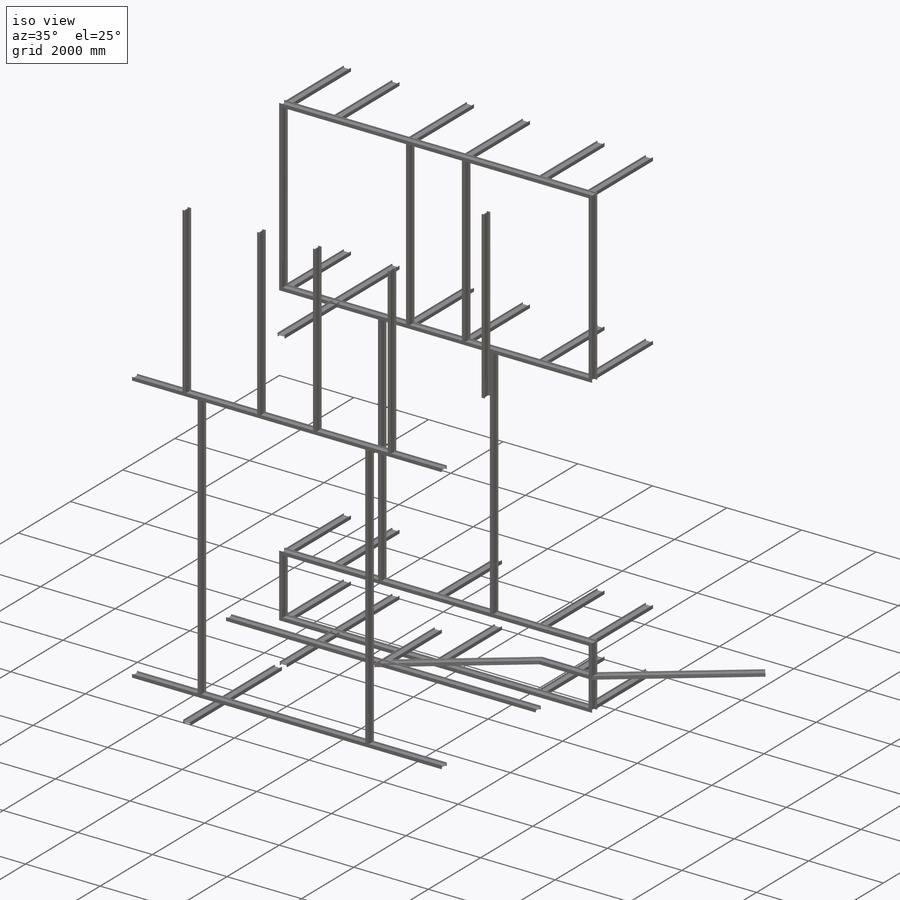
[diagram: iso view]
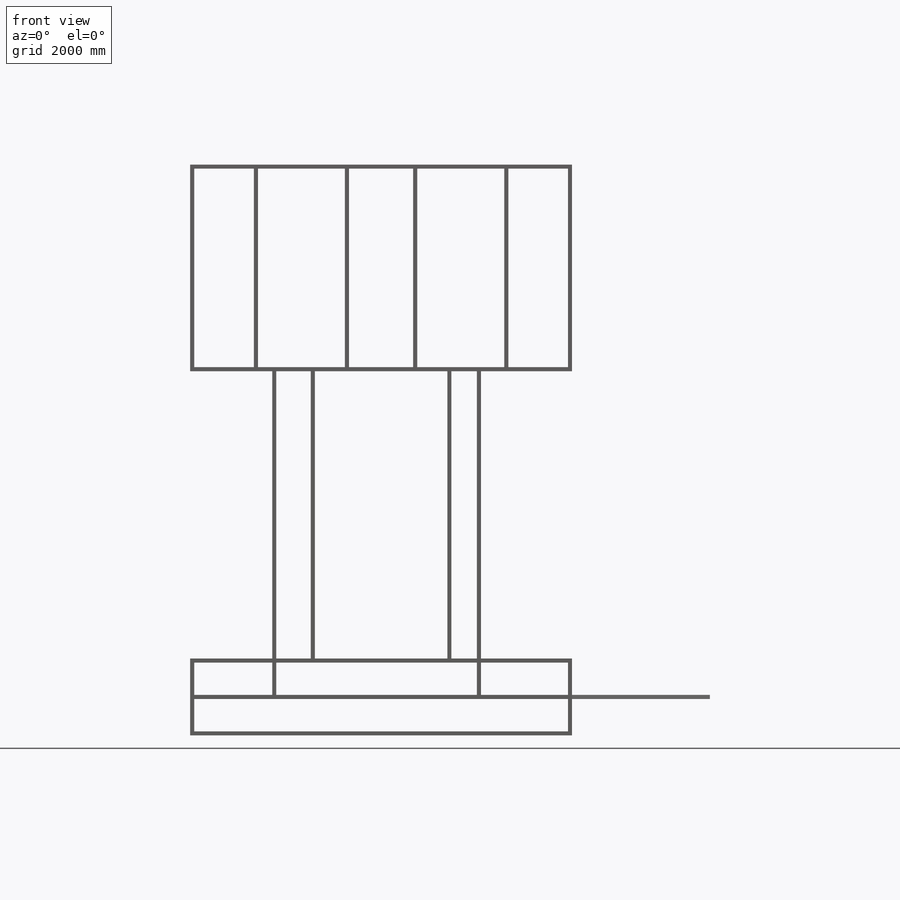
[diagram: front view]
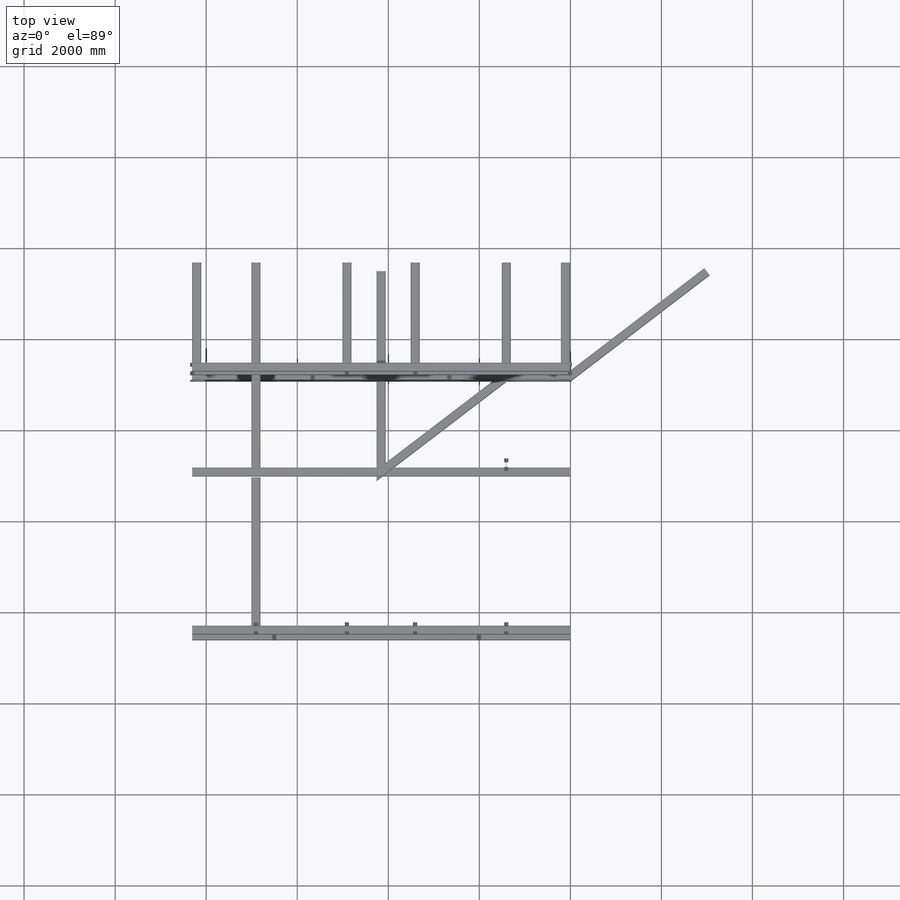
[diagram: top view]
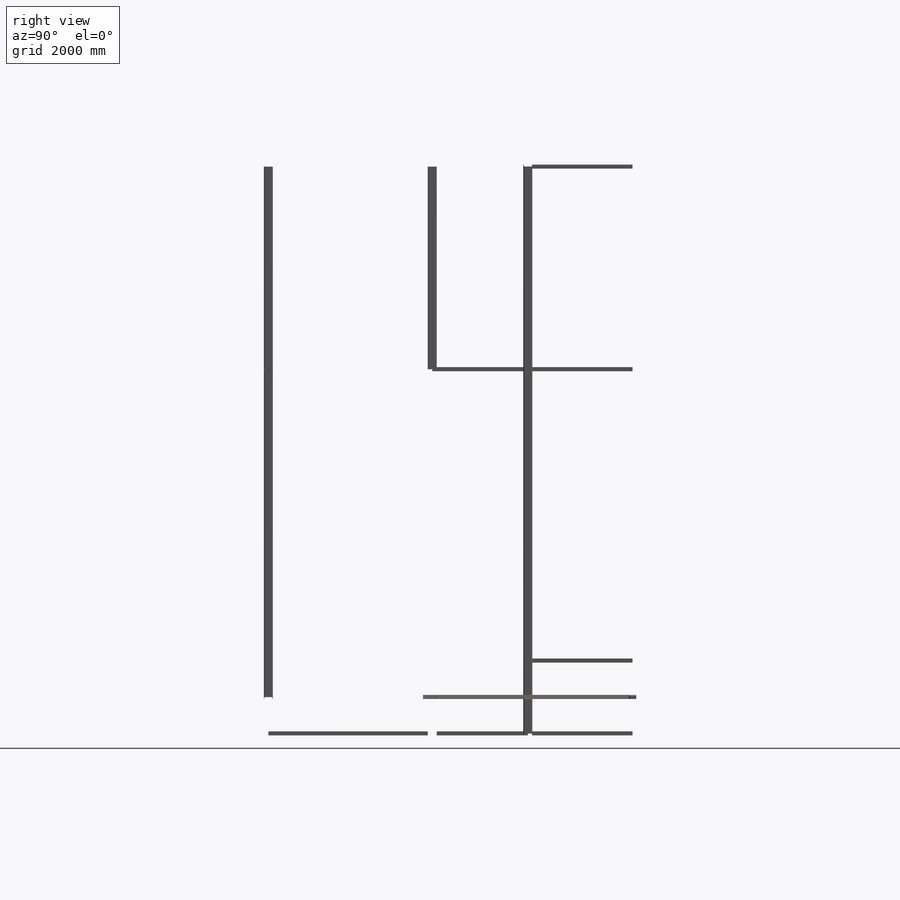
[diagram: right view]
SOLIDWORKS PART (.sldprt)
format: sldprt  version: not decoded by parser v0  size: 7,118,848 bytes
history: native  units: mm
features: sketch x60, plane x55, extrude x6, material x1 (+15 scaffold rows collapsed)
feature tree (137):
  scaffold x15  (default folders/planes/origin — collapsed)
  material  "Material <not specified>"
  plane  "Plane1"  Offset=2450mm
  sketch  "3DSketch1"  dims[c1.D1=~1815.729114mm c1.D2=~1815.729114mm c2.D1=~6978.54811mm c3.D1=~6978.54811mm c4.D1=~6978.54811mm c5.D1=~6978.54811mm c6.D1=~6978.54811mm c6.D14=6400.0mm c6.D2=~11217.853037mm c6.D3=11000.0mm c7.D3=~10347.547536mm c7.D5=8000.0mm c7.D4=1596.4208mm c7.D25=800.0mm c8.D5=~16479.824358mm c8.D6=~1844.717309mm c8.D8=800.0mm c8.D7=~2442.278864mm c9.D8=~2442.278864mm c9.D7=~3681.846512mm c9.D3=2400.0mm c10.D8=~3066.340263mm c10.D26=2400.0mm c10.D9=~3299.181276mm c10.D5=2400.0mm c10.D10=~3381.204835mm c10.D3=2400.0mm c10.D11=~1842.867997mm c11.D5=2400.0mm c11.D12=~1708.084774mm c12.D5=2400.0mm c12.D13=1944.4405mm c12.D8=2400.0mm c12.D14=~2033.247732mm c13.D5=2400.0mm c13.D15=~1464.738663mm c13.D22=4000.0mm c13.D16=~967.009644mm c13.D3=4000.0mm c13.D17=~1844.187544mm c14.D5=2000.0mm c14.D18=~800.313909mm c15.D18=~1.60481deg c15.D19=~1.60481deg c16.D18=800.0mm c17.D18=~1.60481deg c18.D18=~1700.456089mm c18.D14=2000.0mm c18.D19=~1825.089422mm c18.D8=2000.0mm c18.D20=~1633.594205mm c18.D5=2000.0mm c18.D21=~379.983047mm c19.D5=25.0mm c19.D22=~448.675368mm c20.D5=25.0mm c20.D23=~285.158496mm c21.D5=25.0mm c21.D24=~383.442613mm c22.D5=25.0mm c22.D25=~236.437924mm c22.D26=~360.911832mm c22.D29=25.0mm c22.D27=~288.390977mm c23.D5=25.0mm c23.D28=~181.759897mm c24.D5=25.0mm c24.D4=~873.632186mm c24.D26=800.0mm c24.D25=~861.709072mm c24.D8=800.0mm c25.D4=1600.0mm c25.D5=~6401.205932mm c25.D13=~6401.205932mm c25.D6=~1623.99975mm c26.D5=~1600.301483mm c26.D8=1200.0mm c27.D5=~1600.301483mm c27.D13=~1201.205932mm c27.D14=~6401.205932mm c27.D17=~6401.205932mm c28.D14=~798.794068mm c28.D17=~798.794068mm c28.D5=~798.794068mm c28.D6=800.0mm c28.D8=800.0mm c29.D6=800.0mm c29.D15=800.0mm c29.D8=~800.000003mm c30.D6=~800.000003mm c30.D13=~799.999997mm c30.D3=~799.999997mm c30.D14=~5499.999997mm c31.D6=~5499.999997mm c31.D17=~1357.645402mm c31.D9=3000.0mm c31.D18=~1659.563283mm c31.D2=3000.0mm c31.D19=~1249.999971mm c31.D20=~1250.000029mm c31.D21=2000.0mm c32.D20=~2388.437928mm c32.D19=3500.0mm c32.D12=4000.0mm c33.D20=3500.0mm c33.D9=3800.0mm c33.D21=~2629.224152mm c33.D23=3000.0mm c33.D22=~2106.71322mm c33.D15=~1632.800063mm c34.D21=3000.0mm c34.D22=3000.0mm c34.D15=3000.0mm c34.D23=~6399.934396mm c34.D3=800.0mm c34.D6=800.0mm c34.D5=8300.0mm c35.D6=~438.544342mm c35.D7=~623.099095mm c35.D8=~2638.573597mm c35.D14=3200.0mm c35.D9=~800.607199mm c36.D9=~2.231624deg c36.D10=~2.231624deg c37.D10=800.0mm c37.D9=7800.0mm c38.D10=8000.0mm c39.D10=8000.0mm c39.D2=8300.0mm c39.D9=2300.0mm c40.D10=2400.0mm c40.D11=~2387.507298mm c41.D10=800.0mm c41.D11=800.0mm c42.D10=~1229.257741mm c42.D11=~1229.257741mm c42.D12=~1229.257741mm c43.D11=~1229.257741mm c43.D12=~1229.257741mm c44.D11=~1362.083165mm c44.D37=1500.0mm c44.D12=~1707.702081mm c44.D14=1500.0mm c44.D13=~2992.297919mm c44.D6=3000.0mm c44.D8=3600.0mm c45.D12=3000.0mm c45.D3=4000.0mm c45.D6=4000.0mm c46.D3=~793.421548mm c46.D6=800.0mm c47.D3=8000.0mm c48.D3=~179.956513deg c48.D6=~179.956513deg c49.D6=8000.0mm c50.D6=~0.043487deg c50.D3=~7999.997696mm c51.D3=~0.043487deg c51.D6=~0.043487deg c52.D3=~805.62373mm c52.D6=2400.0mm c53.D3=~269.904228mm c53.D31=100.0mm c53.D6=100.0mm c53.D7=100.0mm c53.D8=100.0mm c53.D12=100.0mm c53.D13=100.0mm c53.D14=2300.0mm c53.D15=2300.0mm c53.D16=2300.0mm c53.D17=2300.0mm c53.D18=2300.0mm c53.D19=2300.0mm c53.D20=100.0mm c53.D21=100.0mm c53.D22=2300.0mm c53.D23=2300.0mm c53.D24=~400.036064mm c53.D26=400.0mm c53.D25=~400.034923mm c54.D24=400.0mm c54.D26=3982.0mm c54.D27=3982.0mm c55.D24=750.0mm c55.D25=750.0mm c55.D26=~792.869848mm c55.D44=800.0mm c55.D27=8000.0mm c55.D28=8000.0mm c56.D27=750.0mm c56.D28=750.0mm c56.D29=~2999.995391mm c56.D70=~2999.995391mm c56.D30=~2999.995391mm c56.D31=~3000.004609mm c56.D74=~3000.004609mm c56.D32=~3000.00988mm c56.D36=3000.0mm c56.D33=~3023.115713mm c56.D11=3000.0mm c56.D34=~2994.325962mm c57.D11=3000.0mm c57.D35=8000.0mm c58.D35=90.0deg c59.D35=1500.0mm c59.D37=1500.0mm c59.D36=~3007.702081mm c59.D11=3000.0mm c60.D37=8000.0mm c60.D35=8000.0mm c61.D37=8000.0mm c61.D35=1500.0mm c61.D11=3000.0mm c62.D37=3000.0mm c62.D11=3000.0mm c62.D55=3000.0mm c63.D37=8000.0mm c63.D38=8000.0mm c64.D37=1500.0mm c64.D38=4150.0mm c64.D39=4150.0mm c64.D40=~4334.532831mm c64.D60=4700.0mm c64.D41=1600.0mm c64.D42=4150.0mm c64.D43=4150.0mm c64.D44=~4754.018526mm c64.D45=4000.0mm c65.D44=~783.609547mm c65.D70=800.0mm c65.D45=8300.0mm c65.D46=~3105.927378mm c66.D70=4150.0mm c66.D47=6400.0mm c66.D48=~6853.458406mm c66.D49=6400.0mm c67.D48=6400.0mm c67.D49=~9203.914954mm c67.D60=7500.0mm c67.D50=~2714.928924mm c67.D69=~2714.928924mm c67.D51=~2299.999999mm c67.D52=~2299.999999mm c68.D51=8300.0mm c68.D52=~8075.914488mm c68.D26=8800.0mm c68.D53=4150.0mm c68.D54=~900.856164mm c68.D58=800.0mm c68.D55=~1099.196453mm c69.D26=800.0mm c69.D56=2000.0mm c69.D57=~2441.466564mm c69.D50=2000.0mm c69.D54=2300.0mm c69.D58=2300.0mm c69.D59=2300.0mm c69.D60=~2485.071077mm c69.D61=~2485.071077mm c69.D49=2300.0mm c70.D60=~2400.000001mm c70.D61=~2400.000001mm c70.D40=~2400.000001mm c71.D60=~2400.000001mm c71.D40=2300.0mm c72.D60=2300.0mm c72.D61=2300.0mm c72.D62=2300.0mm c72.D63=2300.0mm c72.D64=2300.0mm c72.D65=2300.0mm c72.D66=2300.0mm c72.D67=2100.0mm c72.D68=~2714.928924mm c72.D50=3600.0mm c72.D69=~2714.928924mm c72.D70=~2714.928924mm c73.D50=3600.0mm c73.D57=1500.0mm c73.D68=750.0mm c73.D69=2300.0mm c73.D70=~4694.780441mm c73.D26=12450.0mm c73.D44=12450.0mm c73.D52=12450.0mm c73.D55=~803.982265mm c73.D10=1300.0mm c73.D11=1300.0mm c73.D33=~1002.115919mm c73.D34=~1002.115919mm c74.D33=8300.0mm c74.D34=8300.0mm c75.D33=1400.0mm c75.D34=~8452.810184mm c75.D36=~8452.810184mm c76.D34=~1102.115919mm c76.D36=~1102.115919mm c77.D34=1400.0mm c77.D36=~1102.115919mm c77.D55=~1102.115919mm c78.D36=~1627.493449mm c78.D55=~1627.493449mm c79.D36=~1102.115919mm c79.D55=~1102.115919mm c79.D32=1400.0mm c80.D36=1400.0mm c80.D55=1300.0mm c80.D29=1300.0mm c80.D70=~1050.008916mm c80.D31=~1050.008916mm c80.D71=1400.0mm c80.D72=~4209.427151mm c80.D73=~4209.427151mm c81.D72=1400.0mm c81.D73=1400.0mm c81.D74=~1049.995391mm c81.D75=~1049.995391mm c81.D30=1300.0mm c81.D31=1400.0mm c82.D74=1400.0mm c82.D31=100.0mm c82.D46=1300.0mm c82.D70=~4237.729545mm c83.D70=~172.348712deg c84.D70=1500.0mm c84.D74=750.0mm c84.D75=750.0mm c85.D74=750.0mm c85.D75=750.0mm c86.D74=1500.0mm c86.D75=1500.0mm c86.D76=~2371.63646mm c86.D77=~2371.63646mm c87.D76=1300.0mm c87.D77=500.0mm c87.D78=500.0mm c87.D79=4200.0mm c87.D80=4200.0mm]
  plane  "Plane4"
  sketch  "Sketch1"  dims[c1.D5=6.35mm c1.D7=2.54mm c1.D8=2.54mm c1.D10=2.54mm c1.D11=2.54mm c1.RA=2.54mm c2.D5=7.5mm c2.D10=10.0mm c2.D1=90.0mm c2.D2=6.35mm c2.D3=44.45mm c2.D4=12.7mm c2.D6=90.0deg c3.D2=97.0deg c3.D7=90.0deg c3.D8=6.35mm c3.D9=90.0deg c3.D10=19.05mm c4.D2=90.0deg c4.D6=99.0deg c4.D7=19.05mm c4.D9=99.0deg c4.D12=5.08mm c4.D8=19.05mm c5.D6=90.0deg c5.D2=200.0mm c5.D3=7.5mm c6.D6=90.0deg c6.D7=90.0deg c6.D8=~157.817745mm c7.D6=~19.183835mm c8.D6=9.463deg c8.D7=~13.491778mm c9.D7=9.463deg c9.D2=~6.364353mm c9.D10=22.098mm c9.D6=184.023mm c10.D6=9.463deg c11.D6=~62.307608mm c12.D6=170.537deg c13.D6=184.023mm c14.D6=170.537deg c15.D6=184.023mm c16.D6=170.537deg c17.D6=~6.747162mm c18.D6=99.463deg c18.D7=~6.747162mm c19.D7=260.537deg c20.D7=~6.747162mm c21.D7=99.463deg c21.D9=45.0mm c21.D11=100.0mm c21.D10=~1.508872mm]
  plane  "Plane5"
  sketch  "Sketch11"  dims[c1.D5=6.35mm c1.D7=2.54mm c1.D8=2.54mm c1.D10=2.54mm c1.D11=2.54mm c1.RA=2.54mm c2.D5=7.5mm c2.D10=10.0mm c2.D1=90.0mm c2.D2=6.35mm c2.D3=44.45mm c2.D4=12.7mm c2.D6=90.0deg c3.D2=97.0deg c3.D7=90.0deg c3.D8=6.35mm c3.D9=90.0deg c3.D10=19.05mm c4.D2=90.0deg c4.D6=99.0deg c4.D7=19.05mm c4.D9=99.0deg c4.D12=5.08mm c4.D8=19.05mm c5.D6=90.0deg c5.D2=200.0mm c5.D3=7.5mm c6.D6=90.0deg c6.D7=90.0deg c6.D8=~157.817745mm c7.D6=~19.183835mm c8.D6=9.463deg c8.D7=~13.491778mm c9.D7=9.463deg c9.D2=~6.364353mm c9.D10=22.098mm c9.D6=184.023mm c10.D6=9.463deg c11.D6=~62.307608mm c12.D6=170.537deg c13.D6=184.023mm c14.D6=170.537deg c15.D6=184.023mm c16.D6=170.537deg c17.D6=~6.747162mm c18.D6=99.463deg c18.D7=~6.747162mm c19.D7=260.537deg c20.D7=~6.747162mm c21.D7=99.463deg c21.D9=45.0mm c21.D11=100.0mm c21.D10=~1.508872mm]
  plane  "Plane6"
  sketch  "Sketch12"  dims[c1.D5=6.35mm c1.D7=2.54mm c1.D8=2.54mm c1.D10=2.54mm c1.D11=2.54mm c1.RA=2.54mm c2.D5=7.5mm c2.D10=10.0mm c2.D1=90.0mm c2.D2=6.35mm c2.D3=44.45mm c2.D4=12.7mm c2.D6=90.0deg c3.D2=97.0deg c3.D7=90.0deg c3.D8=6.35mm c3.D9=90.0deg c3.D10=19.05mm c4.D2=90.0deg c4.D6=99.0deg c4.D7=19.05mm c4.D9=99.0deg c4.D12=5.08mm c4.D8=19.05mm c5.D6=90.0deg c5.D2=200.0mm c5.D3=7.5mm c6.D6=90.0deg c6.D7=90.0deg c6.D8=~157.817745mm c7.D6=~19.183835mm c8.D6=9.463deg c8.D7=~13.491778mm c9.D7=9.463deg c9.D2=~6.364353mm c9.D10=22.098mm c9.D6=184.023mm c10.D6=9.463deg c11.D6=~62.307608mm c12.D6=170.537deg c13.D6=184.023mm c14.D6=170.537deg c15.D6=184.023mm c16.D6=170.537deg c17.D6=~6.747162mm c18.D6=99.463deg c18.D7=~6.747162mm c19.D7=260.537deg c20.D7=~6.747162mm c21.D7=99.463deg c21.D9=45.0mm c21.D11=100.0mm c21.D10=~1.508872mm]
  plane  "Plane7"
  sketch  "Sketch13"  dims[c1.D5=6.35mm c1.D7=2.54mm c1.D8=2.54mm c1.D10=2.54mm c1.D11=2.54mm c1.RA=2.54mm c2.D5=7.5mm c2.D10=10.0mm c2.D1=90.0mm c2.D2=6.35mm c2.D3=44.45mm c2.D4=12.7mm c2.D6=90.0deg c3.D2=97.0deg c3.D7=90.0deg c3.D8=6.35mm c3.D9=90.0deg c3.D10=19.05mm c4.D2=90.0deg c4.D6=99.0deg c4.D7=19.05mm c4.D9=99.0deg c4.D12=5.08mm c4.D8=19.05mm c5.D6=90.0deg c5.D2=200.0mm c5.D3=7.5mm c6.D6=90.0deg c6.D7=90.0deg c6.D8=~157.817745mm c7.D6=~19.183835mm c8.D6=9.463deg c8.D7=~13.491778mm c9.D7=9.463deg c9.D2=~6.364353mm c9.D10=22.098mm c9.D6=184.023mm c10.D6=9.463deg c11.D6=~62.307608mm c12.D6=170.537deg c13.D6=184.023mm c14.D6=170.537deg c15.D6=184.023mm c16.D6=170.537deg c17.D6=~6.747162mm c18.D6=99.463deg c18.D7=~6.747162mm c19.D7=260.537deg c20.D7=~6.747162mm c21.D7=99.463deg c21.D9=45.0mm c21.D11=100.0mm c21.D10=~1.508872mm]
  plane  "Plane8"
  sketch  "Sketch14"  dims[c1.D5=6.35mm c1.D7=2.54mm c1.D8=2.54mm c1.D10=2.54mm c1.D11=2.54mm c1.RA=2.54mm c2.D5=7.5mm c2.D10=10.0mm c2.D1=90.0mm c2.D2=6.35mm c2.D3=44.45mm c2.D4=12.7mm c2.D6=90.0deg c3.D2=97.0deg c3.D7=90.0deg c3.D8=6.35mm c3.D9=90.0deg c3.D10=19.05mm c4.D2=90.0deg c4.D6=99.0deg c4.D7=19.05mm c4.D9=99.0deg c4.D12=5.08mm c4.D8=19.05mm c5.D6=90.0deg c5.D2=200.0mm c5.D3=7.5mm c6.D6=90.0deg c6.D7=90.0deg c6.D8=~157.817745mm c7.D6=~19.183835mm c8.D6=9.463deg c8.D7=~13.491778mm c9.D7=9.463deg c9.D2=~6.364353mm c9.D10=22.098mm c9.D6=184.023mm c10.D6=9.463deg c11.D6=~62.307608mm c12.D6=170.537deg c13.D6=184.023mm c14.D6=170.537deg c15.D6=184.023mm c16.D6=170.537deg c17.D6=~6.747162mm c18.D6=99.463deg c18.D7=~6.747162mm c19.D7=260.537deg c20.D7=~6.747162mm c21.D7=99.463deg c21.D9=45.0mm c21.D11=100.0mm c21.D10=~1.508872mm]
  plane  "Plane9"
  sketch  "Sketch15"  dims[c1.D5=6.35mm c1.D7=2.54mm c1.D8=2.54mm c1.D10=2.54mm c1.D11=2.54mm c1.RA=2.54mm c2.D5=7.5mm c2.D10=10.0mm c2.D1=90.0mm c2.D2=6.35mm c2.D3=44.45mm c2.D4=12.7mm c2.D6=90.0deg c3.D2=97.0deg c3.D7=90.0deg c3.D8=6.35mm c3.D9=90.0deg c3.D10=19.05mm c4.D2=90.0deg c4.D6=99.0deg c4.D7=19.05mm c4.D9=99.0deg c4.D12=5.08mm c4.D8=19.05mm c5.D6=90.0deg c5.D2=200.0mm c5.D3=7.5mm c6.D6=90.0deg c6.D7=90.0deg c6.D8=~157.817745mm c7.D6=~19.183835mm c8.D6=9.463deg c8.D7=~13.491778mm c9.D7=9.463deg c9.D2=~6.364353mm c9.D10=22.098mm c9.D6=184.023mm c10.D6=9.463deg c11.D6=~62.307608mm c12.D6=170.537deg c13.D6=184.023mm c14.D6=170.537deg c15.D6=184.023mm c16.D6=170.537deg c17.D6=~6.747162mm c18.D6=99.463deg c18.D7=~6.747162mm c19.D7=260.537deg c20.D7=~6.747162mm c21.D7=99.463deg c21.D9=45.0mm c21.D11=100.0mm c21.D10=~1.508872mm]
  plane  "Plane10"
  sketch  "Sketch16"  dims[c1.D5=6.35mm c1.D7=2.54mm c1.D8=2.54mm c1.D10=2.54mm c1.D11=2.54mm c1.RA=2.54mm c2.D5=7.5mm c2.D10=10.0mm c2.D1=90.0mm c2.D2=6.35mm c2.D3=44.45mm c2.D4=12.7mm c2.D6=90.0deg c3.D2=97.0deg c3.D7=90.0deg c3.D8=6.35mm c3.D9=90.0deg c3.D10=19.05mm c4.D2=90.0deg c4.D6=99.0deg c4.D7=19.05mm c4.D9=99.0deg c4.D12=5.08mm c4.D8=19.05mm c5.D6=90.0deg c5.D2=200.0mm c5.D3=7.5mm c6.D6=90.0deg c6.D7=90.0deg c6.D8=~157.817745mm c7.D6=~19.183835mm c8.D6=9.463deg c8.D7=~13.491778mm c9.D7=9.463deg c9.D2=~6.364353mm c9.D10=22.098mm c9.D6=184.023mm c10.D6=9.463deg c11.D6=~62.307608mm c12.D6=170.537deg c13.D6=184.023mm c14.D6=170.537deg c15.D6=184.023mm c16.D6=170.537deg c17.D6=~6.747162mm c18.D6=99.463deg c18.D7=~6.747162mm c19.D7=260.537deg c20.D7=~6.747162mm c21.D7=99.463deg c21.D9=45.0mm c21.D11=100.0mm c21.D10=~1.508872mm]
  plane  "Plane11"
  sketch  "Sketch17"  dims[c1.D5=6.35mm c1.D7=2.54mm c1.D8=2.54mm c1.D10=2.54mm c1.D11=2.54mm c1.RA=2.54mm c2.D5=7.5mm c2.D10=10.0mm c2.D1=90.0mm c2.D2=6.35mm c2.D3=44.45mm c2.D4=12.7mm c2.D6=90.0deg c3.D2=97.0deg c3.D7=90.0deg c3.D8=6.35mm c3.D9=90.0deg c3.D10=19.05mm c4.D2=90.0deg c4.D6=99.0deg c4.D7=19.05mm c4.D9=99.0deg c4.D12=5.08mm c4.D8=19.05mm c5.D6=90.0deg c5.D2=200.0mm c5.D3=7.5mm c6.D6=90.0deg c6.D7=90.0deg c6.D8=~157.817745mm c7.D6=~19.183835mm c8.D6=9.463deg c8.D7=~13.491778mm c9.D7=9.463deg c9.D2=~6.364353mm c9.D10=22.098mm c9.D6=184.023mm c10.D6=9.463deg c11.D6=~62.307608mm c12.D6=170.537deg c13.D6=184.023mm c14.D6=170.537deg c15.D6=184.023mm c16.D6=170.537deg c17.D6=~6.747162mm c18.D6=99.463deg c18.D7=~6.747162mm c19.D7=260.537deg c20.D7=~6.747162mm c21.D7=99.463deg c21.D9=45.0mm c21.D11=100.0mm c21.D10=~1.508872mm]
  plane  "Plane12"
  sketch  "Sketch18"  dims[c1.D5=6.35mm c1.D7=2.54mm c1.D8=2.54mm c1.D10=2.54mm c1.D11=2.54mm c1.RA=2.54mm c2.D5=7.5mm c2.D10=10.0mm c2.D1=90.0mm c2.D2=6.35mm c2.D3=44.45mm c2.D4=12.7mm c2.D6=90.0deg c3.D2=97.0deg c3.D7=90.0deg c3.D8=6.35mm c3.D9=90.0deg c3.D10=19.05mm c4.D2=90.0deg c4.D6=99.0deg c4.D7=19.05mm c4.D9=99.0deg c4.D12=5.08mm c4.D8=19.05mm c5.D6=90.0deg c5.D2=200.0mm c5.D3=7.5mm c6.D6=90.0deg c6.D7=90.0deg c6.D8=~157.817745mm c7.D6=~19.183835mm c8.D6=9.463deg c8.D7=~13.491778mm c9.D7=9.463deg c9.D2=~6.364353mm c9.D10=22.098mm c9.D6=184.023mm c10.D6=9.463deg c11.D6=~62.307608mm c12.D6=170.537deg c13.D6=184.023mm c14.D6=170.537deg c15.D6=184.023mm c16.D6=170.537deg c17.D6=~6.747162mm c18.D6=99.463deg c18.D7=~6.747162mm c19.D7=260.537deg c20.D7=~6.747162mm c21.D7=99.463deg c21.D9=45.0mm c21.D11=100.0mm c21.D10=~1.508872mm]
  plane  "Plane13"
  sketch  "Sketch19"  dims[c1.D5=6.35mm c1.D7=2.54mm c1.D8=2.54mm c1.D10=2.54mm c1.D11=2.54mm c1.RA=2.54mm c2.D5=7.5mm c2.D10=10.0mm c2.D1=90.0mm c2.D2=6.35mm c2.D3=44.45mm c2.D4=12.7mm c2.D6=90.0deg c3.D2=97.0deg c3.D7=90.0deg c3.D8=6.35mm c3.D9=90.0deg c3.D10=19.05mm c4.D2=90.0deg c4.D6=99.0deg c4.D7=19.05mm c4.D9=99.0deg c4.D12=5.08mm c4.D8=19.05mm c5.D6=90.0deg c5.D2=200.0mm c5.D3=7.5mm c6.D6=90.0deg c6.D7=90.0deg c6.D8=~157.817745mm c7.D6=~19.183835mm c8.D6=9.463deg c8.D7=~13.491778mm c9.D7=9.463deg c9.D2=~6.364353mm c9.D10=22.098mm c9.D6=184.023mm c10.D6=9.463deg c11.D6=~62.307608mm c12.D6=170.537deg c13.D6=184.023mm c14.D6=170.537deg c15.D6=184.023mm c16.D6=170.537deg c17.D6=~6.747162mm c18.D6=99.463deg c18.D7=~6.747162mm c19.D7=260.537deg c20.D7=~6.747162mm c21.D7=99.463deg c21.D9=45.0mm c21.D11=100.0mm c21.D10=~1.508872mm]
  plane  "Plane14"
  sketch  "Sketch110"  dims[c1.D5=6.35mm c1.D7=2.54mm c1.D8=2.54mm c1.D10=2.54mm c1.D11=2.54mm c1.RA=2.54mm c2.D5=7.5mm c2.D10=10.0mm c2.D1=90.0mm c2.D2=6.35mm c2.D3=44.45mm c2.D4=12.7mm c2.D6=90.0deg c3.D2=97.0deg c3.D7=90.0deg c3.D8=6.35mm c3.D9=90.0deg c3.D10=19.05mm c4.D2=90.0deg c4.D6=99.0deg c4.D7=19.05mm c4.D9=99.0deg c4.D12=5.08mm c4.D8=19.05mm c5.D6=90.0deg c5.D2=200.0mm c5.D3=7.5mm c6.D6=90.0deg c6.D7=90.0deg c6.D8=~157.817745mm c7.D6=~19.183835mm c8.D6=9.463deg c8.D7=~13.491778mm c9.D7=9.463deg c9.D2=~6.364353mm c9.D10=22.098mm c9.D6=184.023mm c10.D6=9.463deg c11.D6=~62.307608mm c12.D6=170.537deg c13.D6=184.023mm c14.D6=170.537deg c15.D6=184.023mm c16.D6=170.537deg c17.D6=~6.747162mm c18.D6=99.463deg c18.D7=~6.747162mm c19.D7=260.537deg c20.D7=~6.747162mm c21.D7=99.463deg c21.D9=45.0mm c21.D11=100.0mm c21.D10=~1.508872mm]
  plane  "Plane15"
  sketch  "Sketch111"  dims[c1.D5=6.35mm c1.D7=2.54mm c1.D8=2.54mm c1.D10=2.54mm c1.D11=2.54mm c1.RA=2.54mm c2.D5=7.5mm c2.D10=10.0mm c2.D1=90.0mm c2.D2=6.35mm c2.D3=44.45mm c2.D4=12.7mm c2.D6=90.0deg c3.D2=97.0deg c3.D7=90.0deg c3.D8=6.35mm c3.D9=90.0deg c3.D10=19.05mm c4.D2=90.0deg c4.D6=99.0deg c4.D7=19.05mm c4.D9=99.0deg c4.D12=5.08mm c4.D8=19.05mm c5.D6=90.0deg c5.D2=200.0mm c5.D3=7.5mm c6.D6=90.0deg c6.D7=90.0deg c6.D8=~157.817745mm c7.D6=~19.183835mm c8.D6=9.463deg c8.D7=~13.491778mm c9.D7=9.463deg c9.D2=~6.364353mm c9.D10=22.098mm c9.D6=184.023mm c10.D6=9.463deg c11.D6=~62.307608mm c12.D6=170.537deg c13.D6=184.023mm c14.D6=170.537deg c15.D6=184.023mm c16.D6=170.537deg c17.D6=~6.747162mm c18.D6=99.463deg c18.D7=~6.747162mm c19.D7=260.537deg c20.D7=~6.747162mm c21.D7=99.463deg c21.D9=45.0mm c21.D11=100.0mm c21.D10=~1.508872mm]
  plane  "Plane16"
  sketch  "Sketch112"  dims[c1.D5=6.35mm c1.D7=2.54mm c1.D8=2.54mm c1.D10=2.54mm c1.D11=2.54mm c1.RA=2.54mm c2.D5=7.5mm c2.D10=10.0mm c2.D1=90.0mm c2.D2=6.35mm c2.D3=44.45mm c2.D4=12.7mm c2.D6=90.0deg c3.D2=97.0deg c3.D7=90.0deg c3.D8=6.35mm c3.D9=90.0deg c3.D10=19.05mm c4.D2=90.0deg c4.D6=99.0deg c4.D7=19.05mm c4.D9=99.0deg c4.D12=5.08mm c4.D8=19.05mm c5.D6=90.0deg c5.D2=200.0mm c5.D3=7.5mm c6.D6=90.0deg c6.D7=90.0deg c6.D8=~157.817745mm c7.D6=~19.183835mm c8.D6=9.463deg c8.D7=~13.491778mm c9.D7=9.463deg c9.D2=~6.364353mm c9.D10=22.098mm c9.D6=184.023mm c10.D6=9.463deg c11.D6=~62.307608mm c12.D6=170.537deg c13.D6=184.023mm c14.D6=170.537deg c15.D6=184.023mm c16.D6=170.537deg c17.D6=~6.747162mm c18.D6=99.463deg c18.D7=~6.747162mm c19.D7=260.537deg c20.D7=~6.747162mm c21.D7=99.463deg c21.D9=45.0mm c21.D11=100.0mm c21.D10=~1.508872mm]
  plane  "Plane17"
  sketch  "Sketch113"  dims[c1.D5=6.35mm c1.D7=2.54mm c1.D8=2.54mm c1.D10=2.54mm c1.D11=2.54mm c1.RA=2.54mm c2.D5=7.5mm c2.D10=10.0mm c2.D1=90.0mm c2.D2=6.35mm c2.D3=44.45mm c2.D4=12.7mm c2.D6=90.0deg c3.D2=97.0deg c3.D7=90.0deg c3.D8=6.35mm c3.D9=90.0deg c3.D10=19.05mm c4.D2=90.0deg c4.D6=99.0deg c4.D7=19.05mm c4.D9=99.0deg c4.D12=5.08mm c4.D8=19.05mm c5.D6=90.0deg c5.D2=200.0mm c5.D3=7.5mm c6.D6=90.0deg c6.D7=90.0deg c6.D8=~157.817745mm c7.D6=~19.183835mm c8.D6=9.463deg c8.D7=~13.491778mm c9.D7=9.463deg c9.D2=~6.364353mm c9.D10=22.098mm c9.D6=184.023mm c10.D6=9.463deg c11.D6=~62.307608mm c12.D6=170.537deg c13.D6=184.023mm c14.D6=170.537deg c15.D6=184.023mm c16.D6=170.537deg c17.D6=~6.747162mm c18.D6=99.463deg c18.D7=~6.747162mm c19.D7=260.537deg c20.D7=~6.747162mm c21.D7=99.463deg c21.D9=45.0mm c21.D11=100.0mm c21.D10=~1.508872mm]
  plane  "Plane18"
  sketch  "Sketch114"  dims[c1.D5=6.35mm c1.D7=2.54mm c1.D8=2.54mm c1.D10=2.54mm c1.D11=2.54mm c1.RA=2.54mm c2.D5=7.5mm c2.D10=10.0mm c2.D1=90.0mm c2.D2=6.35mm c2.D3=44.45mm c2.D4=12.7mm c2.D6=90.0deg c3.D2=97.0deg c3.D7=90.0deg c3.D8=6.35mm c3.D9=90.0deg c3.D10=19.05mm c4.D2=90.0deg c4.D6=99.0deg c4.D7=19.05mm c4.D9=99.0deg c4.D12=5.08mm c4.D8=19.05mm c5.D6=90.0deg c5.D2=200.0mm c5.D3=7.5mm c6.D6=90.0deg c6.D7=90.0deg c6.D8=~157.817745mm c7.D6=~19.183835mm c8.D6=9.463deg c8.D7=~13.491778mm c9.D7=9.463deg c9.D2=~6.364353mm c9.D10=22.098mm c9.D6=184.023mm c10.D6=9.463deg c11.D6=~62.307608mm c12.D6=170.537deg c13.D6=184.023mm c14.D6=170.537deg c15.D6=184.023mm c16.D6=170.537deg c17.D6=~6.747162mm c18.D6=99.463deg c18.D7=~6.747162mm c19.D7=260.537deg c20.D7=~6.747162mm c21.D7=99.463deg c21.D9=45.0mm c21.D11=100.0mm c21.D10=~1.508872mm]
  plane  "Plane19"
  sketch  "Sketch115"  dims[c1.D5=6.35mm c1.D7=2.54mm c1.D8=2.54mm c1.D10=2.54mm c1.D11=2.54mm c1.RA=2.54mm c2.D5=7.5mm c2.D10=10.0mm c2.D1=90.0mm c2.D2=6.35mm c2.D3=44.45mm c2.D4=12.7mm c2.D6=90.0deg c3.D2=97.0deg c3.D7=90.0deg c3.D8=6.35mm c3.D9=90.0deg c3.D10=19.05mm c4.D2=90.0deg c4.D6=99.0deg c4.D7=19.05mm c4.D9=99.0deg c4.D12=5.08mm c4.D8=19.05mm c5.D6=90.0deg c5.D2=200.0mm c5.D3=7.5mm c6.D6=90.0deg c6.D7=90.0deg c6.D8=~157.817745mm c7.D6=~19.183835mm c8.D6=9.463deg c8.D7=~13.491778mm c9.D7=9.463deg c9.D2=~6.364353mm c9.D10=22.098mm c9.D6=184.023mm c10.D6=9.463deg c11.D6=~62.307608mm c12.D6=170.537deg c13.D6=184.023mm c14.D6=170.537deg c15.D6=184.023mm c16.D6=170.537deg c17.D6=~6.747162mm c18.D6=99.463deg c18.D7=~6.747162mm c19.D7=260.537deg c20.D7=~6.747162mm c21.D7=99.463deg c21.D9=45.0mm c21.D11=100.0mm c21.D10=~1.508872mm]
  plane  "Plane20"
  sketch  "Sketch116"  dims[c1.D5=6.35mm c1.D7=2.54mm c1.D8=2.54mm c1.D10=2.54mm c1.D11=2.54mm c1.RA=2.54mm c2.D5=7.5mm c2.D10=10.0mm c2.D1=90.0mm c2.D2=6.35mm c2.D3=44.45mm c2.D4=12.7mm c2.D6=90.0deg c3.D2=97.0deg c3.D7=90.0deg c3.D8=6.35mm c3.D9=90.0deg c3.D10=19.05mm c4.D2=90.0deg c4.D6=99.0deg c4.D7=19.05mm c4.D9=99.0deg c4.D12=5.08mm c4.D8=19.05mm c5.D6=90.0deg c5.D2=200.0mm c5.D3=7.5mm c6.D6=90.0deg c6.D7=90.0deg c6.D8=~157.817745mm c7.D6=~19.183835mm c8.D6=9.463deg c8.D7=~13.491778mm c9.D7=9.463deg c9.D2=~6.364353mm c9.D10=22.098mm c9.D6=184.023mm c10.D6=9.463deg c11.D6=~62.307608mm c12.D6=170.537deg c13.D6=184.023mm c14.D6=170.537deg c15.D6=184.023mm c16.D6=170.537deg c17.D6=~6.747162mm c18.D6=99.463deg c18.D7=~6.747162mm c19.D7=260.537deg c20.D7=~6.747162mm c21.D7=99.463deg c21.D9=45.0mm c21.D11=100.0mm c21.D10=~1.508872mm]
  plane  "Plane21"
  sketch  "Sketch117"  dims[c1.D5=6.35mm c1.D7=2.54mm c1.D8=2.54mm c1.D10=2.54mm c1.D11=2.54mm c1.RA=2.54mm c2.D5=7.5mm c2.D10=10.0mm c2.D1=90.0mm c2.D2=6.35mm c2.D3=44.45mm c2.D4=12.7mm c2.D6=90.0deg c3.D2=97.0deg c3.D7=90.0deg c3.D8=6.35mm c3.D9=90.0deg c3.D10=19.05mm c4.D2=90.0deg c4.D6=99.0deg c4.D7=19.05mm c4.D9=99.0deg c4.D12=5.08mm c4.D8=19.05mm c5.D6=90.0deg c5.D2=200.0mm c5.D3=7.5mm c6.D6=90.0deg c6.D7=90.0deg c6.D8=~157.817745mm c7.D6=~19.183835mm c8.D6=9.463deg c8.D7=~13.491778mm c9.D7=9.463deg c9.D2=~6.364353mm c9.D10=22.098mm c9.D6=184.023mm c10.D6=9.463deg c11.D6=~62.307608mm c12.D6=170.537deg c13.D6=184.023mm c14.D6=170.537deg c15.D6=184.023mm c16.D6=170.537deg c17.D6=~6.747162mm c18.D6=99.463deg c18.D7=~6.747162mm c19.D7=260.537deg c20.D7=~6.747162mm c21.D7=99.463deg c21.D9=45.0mm c21.D11=100.0mm c21.D10=~1.508872mm]
  plane  "Plane22"
  sketch  "Sketch118"  dims[c1.D5=6.35mm c1.D7=2.54mm c1.D8=2.54mm c1.D10=2.54mm c1.D11=2.54mm c1.RA=2.54mm c2.D5=7.5mm c2.D10=10.0mm c2.D1=90.0mm c2.D2=6.35mm c2.D3=44.45mm c2.D4=12.7mm c2.D6=90.0deg c3.D2=97.0deg c3.D7=90.0deg c3.D8=6.35mm c3.D9=90.0deg c3.D10=19.05mm c4.D2=90.0deg c4.D6=99.0deg c4.D7=19.05mm c4.D9=99.0deg c4.D12=5.08mm c4.D8=19.05mm c5.D6=90.0deg c5.D2=200.0mm c5.D3=7.5mm c6.D6=90.0deg c6.D7=90.0deg c6.D8=~157.817745mm c7.D6=~19.183835mm c8.D6=9.463deg c8.D7=~13.491778mm c9.D7=9.463deg c9.D2=~6.364353mm c9.D10=22.098mm c9.D6=184.023mm c10.D6=9.463deg c11.D6=~62.307608mm c12.D6=170.537deg c13.D6=184.023mm c14.D6=170.537deg c15.D6=184.023mm c16.D6=170.537deg c17.D6=~6.747162mm c18.D6=99.463deg c18.D7=~6.747162mm c19.D7=260.537deg c20.D7=~6.747162mm c21.D7=99.463deg c21.D9=45.0mm c21.D11=100.0mm c21.D10=~1.508872mm]
  plane  "Plane23"
  sketch  "Sketch119"  dims[c1.D5=6.35mm c1.D7=2.54mm c1.D8=2.54mm c1.D10=2.54mm c1.D11=2.54mm c1.RA=2.54mm c2.D5=7.5mm c2.D10=10.0mm c2.D1=90.0mm c2.D2=6.35mm c2.D3=44.45mm c2.D4=12.7mm c2.D6=90.0deg c3.D2=97.0deg c3.D7=90.0deg c3.D8=6.35mm c3.D9=90.0deg c3.D10=19.05mm c4.D2=90.0deg c4.D6=99.0deg c4.D7=19.05mm c4.D9=99.0deg c4.D12=5.08mm c4.D8=19.05mm c5.D6=90.0deg c5.D2=200.0mm c5.D3=7.5mm c6.D6=90.0deg c6.D7=90.0deg c6.D8=~157.817745mm c7.D6=~19.183835mm c8.D6=9.463deg c8.D7=~13.491778mm c9.D7=9.463deg c9.D2=~6.364353mm c9.D10=22.098mm c9.D6=184.023mm c10.D6=9.463deg c11.D6=~62.307608mm c12.D6=170.537deg c13.D6=184.023mm c14.D6=170.537deg c15.D6=184.023mm c16.D6=170.537deg c17.D6=~6.747162mm c18.D6=99.463deg c18.D7=~6.747162mm c19.D7=260.537deg c20.D7=~6.747162mm c21.D7=99.463deg c21.D9=45.0mm c21.D11=100.0mm c21.D10=~1.508872mm]
  plane  "Plane24"
  sketch  "Sketch120"  dims[c1.D5=6.35mm c1.D7=2.54mm c1.D8=2.54mm c1.D10=2.54mm c1.D11=2.54mm c1.RA=2.54mm c2.D5=7.5mm c2.D10=10.0mm c2.D1=90.0mm c2.D2=6.35mm c2.D3=44.45mm c2.D4=12.7mm c2.D6=90.0deg c3.D2=97.0deg c3.D7=90.0deg c3.D8=6.35mm c3.D9=90.0deg c3.D10=19.05mm c4.D2=90.0deg c4.D6=99.0deg c4.D7=19.05mm c4.D9=99.0deg c4.D12=5.08mm c4.D8=19.05mm c5.D6=90.0deg c5.D2=200.0mm c5.D3=7.5mm c6.D6=90.0deg c6.D7=90.0deg c6.D8=~157.817745mm c7.D6=~19.183835mm c8.D6=9.463deg c8.D7=~13.491778mm c9.D7=9.463deg c9.D2=~6.364353mm c9.D10=22.098mm c9.D6=184.023mm c10.D6=9.463deg c11.D6=~62.307608mm c12.D6=170.537deg c13.D6=184.023mm c14.D6=170.537deg c15.D6=184.023mm c16.D6=170.537deg c17.D6=~6.747162mm c18.D6=99.463deg c18.D7=~6.747162mm c19.D7=260.537deg c20.D7=~6.747162mm c21.D7=99.463deg c21.D9=45.0mm c21.D11=100.0mm c21.D10=~1.508872mm]
  plane  "Plane25"
  sketch  "Sketch121"  dims[c1.D5=6.35mm c1.D7=2.54mm c1.D8=2.54mm c1.D10=2.54mm c1.D11=2.54mm c1.RA=2.54mm c2.D5=7.5mm c2.D10=10.0mm c2.D1=90.0mm c2.D2=6.35mm c2.D3=44.45mm c2.D4=12.7mm c2.D6=90.0deg c3.D2=97.0deg c3.D7=90.0deg c3.D8=6.35mm c3.D9=90.0deg c3.D10=19.05mm c4.D2=90.0deg c4.D6=99.0deg c4.D7=19.05mm c4.D9=99.0deg c4.D12=5.08mm c4.D8=19.05mm c5.D6=90.0deg c5.D2=200.0mm c5.D3=7.5mm c6.D6=90.0deg c6.D7=90.0deg c6.D8=~157.817745mm c7.D6=~19.183835mm c8.D6=9.463deg c8.D7=~13.491778mm c9.D7=9.463deg c9.D2=~6.364353mm c9.D10=22.098mm c9.D6=184.023mm c10.D6=9.463deg c11.D6=~62.307608mm c12.D6=170.537deg c13.D6=184.023mm c14.D6=170.537deg c15.D6=184.023mm c16.D6=170.537deg c17.D6=~6.747162mm c18.D6=99.463deg c18.D7=~6.747162mm c19.D7=260.537deg c20.D7=~6.747162mm c21.D7=99.463deg c21.D9=45.0mm c21.D11=100.0mm c21.D10=~1.508872mm]
  plane  "Plane26"
  sketch  "Sketch122"  dims[c1.D5=6.35mm c1.D7=2.54mm c1.D8=2.54mm c1.D10=2.54mm c1.D11=2.54mm c1.RA=2.54mm c2.D5=7.5mm c2.D10=10.0mm c2.D1=90.0mm c2.D2=6.35mm c2.D3=44.45mm c2.D4=12.7mm c2.D6=90.0deg c3.D2=97.0deg c3.D7=90.0deg c3.D8=6.35mm c3.D9=90.0deg c3.D10=19.05mm c4.D2=90.0deg c4.D6=99.0deg c4.D7=19.05mm c4.D9=99.0deg c4.D12=5.08mm c4.D8=19.05mm c5.D6=90.0deg c5.D2=200.0mm c5.D3=7.5mm c6.D6=90.0deg c6.D7=90.0deg c6.D8=~157.817745mm c7.D6=~19.183835mm c8.D6=9.463deg c8.D7=~13.491778mm c9.D7=9.463deg c9.D2=~6.364353mm c9.D10=22.098mm c9.D6=184.023mm c10.D6=9.463deg c11.D6=~62.307608mm c12.D6=170.537deg c13.D6=184.023mm c14.D6=170.537deg c15.D6=184.023mm c16.D6=170.537deg c17.D6=~6.747162mm c18.D6=99.463deg c18.D7=~6.747162mm c19.D7=260.537deg c20.D7=~6.747162mm c21.D7=99.463deg c21.D9=45.0mm c21.D11=100.0mm c21.D10=~1.508872mm]
  plane  "Plane27"
  sketch  "Sketch123"  dims[c1.D5=6.35mm c1.D7=2.54mm c1.D8=2.54mm c1.D10=2.54mm c1.D11=2.54mm c1.RA=2.54mm c2.D5=7.5mm c2.D10=10.0mm c2.D1=90.0mm c2.D2=6.35mm c2.D3=44.45mm c2.D4=12.7mm c2.D6=90.0deg c3.D2=97.0deg c3.D7=90.0deg c3.D8=6.35mm c3.D9=90.0deg c3.D10=19.05mm c4.D2=90.0deg c4.D6=99.0deg c4.D7=19.05mm c4.D9=99.0deg c4.D12=5.08mm c4.D8=19.05mm c5.D6=90.0deg c5.D2=200.0mm c5.D3=7.5mm c6.D6=90.0deg c6.D7=90.0deg c6.D8=~157.817745mm c7.D6=~19.183835mm c8.D6=9.463deg c8.D7=~13.491778mm c9.D7=9.463deg c9.D2=~6.364353mm c9.D10=22.098mm c9.D6=184.023mm c10.D6=9.463deg c11.D6=~62.307608mm c12.D6=170.537deg c13.D6=184.023mm c14.D6=170.537deg c15.D6=184.023mm c16.D6=170.537deg c17.D6=~6.747162mm c18.D6=99.463deg c18.D7=~6.747162mm c19.D7=260.537deg c20.D7=~6.747162mm c21.D7=99.463deg c21.D9=45.0mm c21.D11=100.0mm c21.D10=~1.508872mm]
  plane  "Plane28"
  sketch  "Sketch124"  dims[c1.D5=6.35mm c1.D7=2.54mm c1.D8=2.54mm c1.D10=2.54mm c1.D11=2.54mm c1.RA=2.54mm c2.D5=7.5mm c2.D10=10.0mm c2.D1=90.0mm c2.D2=6.35mm c2.D3=44.45mm c2.D4=12.7mm c2.D6=90.0deg c3.D2=97.0deg c3.D7=90.0deg c3.D8=6.35mm c3.D9=90.0deg c3.D10=19.05mm c4.D2=90.0deg c4.D6=99.0deg c4.D7=19.05mm c4.D9=99.0deg c4.D12=5.08mm c4.D8=19.05mm c5.D6=90.0deg c5.D2=200.0mm c5.D3=7.5mm c6.D6=90.0deg c6.D7=90.0deg c6.D8=~157.817745mm c7.D6=~19.183835mm c8.D6=9.463deg c8.D7=~13.491778mm c9.D7=9.463deg c9.D2=~6.364353mm c9.D10=22.098mm c9.D6=184.023mm c10.D6=9.463deg c11.D6=~62.307608mm c12.D6=170.537deg c13.D6=184.023mm c14.D6=170.537deg c15.D6=184.023mm c16.D6=170.537deg c17.D6=~6.747162mm c18.D6=99.463deg c18.D7=~6.747162mm c19.D7=260.537deg c20.D7=~6.747162mm c21.D7=99.463deg c21.D9=45.0mm c21.D11=100.0mm c21.D10=~1.508872mm]
  plane  "Plane29"
  sketch  "Sketch125"  dims[c1.D5=6.35mm c1.D7=2.54mm c1.D8=2.54mm c1.D10=2.54mm c1.D11=2.54mm c1.RA=2.54mm c2.D5=7.5mm c2.D10=10.0mm c2.D1=90.0mm c2.D2=6.35mm c2.D3=44.45mm c2.D4=12.7mm c2.D6=90.0deg c3.D2=97.0deg c3.D7=90.0deg c3.D8=6.35mm c3.D9=90.0deg c3.D10=19.05mm c4.D2=90.0deg c4.D6=99.0deg c4.D7=19.05mm c4.D9=99.0deg c4.D12=5.08mm c4.D8=19.05mm c5.D6=90.0deg c5.D2=200.0mm c5.D3=7.5mm c6.D6=90.0deg c6.D7=90.0deg c6.D8=~157.817745mm c7.D6=~19.183835mm c8.D6=9.463deg c8.D7=~13.491778mm c9.D7=9.463deg c9.D2=~6.364353mm c9.D10=22.098mm c9.D6=184.023mm c10.D6=9.463deg c11.D6=~62.307608mm c12.D6=170.537deg c13.D6=184.023mm c14.D6=170.537deg c15.D6=184.023mm c16.D6=170.537deg c17.D6=~6.747162mm c18.D6=99.463deg c18.D7=~6.747162mm c19.D7=260.537deg c20.D7=~6.747162mm c21.D7=99.463deg c21.D9=45.0mm c21.D11=100.0mm c21.D10=~1.508872mm]
  plane  "Plane30"
  sketch  "Sketch126"  dims[c1.D5=6.35mm c1.D7=2.54mm c1.D8=2.54mm c1.D10=2.54mm c1.D11=2.54mm c1.RA=2.54mm c2.D5=7.5mm c2.D10=10.0mm c2.D1=90.0mm c2.D2=6.35mm c2.D3=44.45mm c2.D4=12.7mm c2.D6=90.0deg c3.D2=97.0deg c3.D7=90.0deg c3.D8=6.35mm c3.D9=90.0deg c3.D10=19.05mm c4.D2=90.0deg c4.D6=99.0deg c4.D7=19.05mm c4.D9=99.0deg c4.D12=5.08mm c4.D8=19.05mm c5.D6=90.0deg c5.D2=200.0mm c5.D3=7.5mm c6.D6=90.0deg c6.D7=90.0deg c6.D8=~157.817745mm c7.D6=~19.183835mm c8.D6=9.463deg c8.D7=~13.491778mm c9.D7=9.463deg c9.D2=~6.364353mm c9.D10=22.098mm c9.D6=184.023mm c10.D6=9.463deg c11.D6=~62.307608mm c12.D6=170.537deg c13.D6=184.023mm c14.D6=170.537deg c15.D6=184.023mm c16.D6=170.537deg c17.D6=~6.747162mm c18.D6=99.463deg c18.D7=~6.747162mm c19.D7=260.537deg c20.D7=~6.747162mm c21.D7=99.463deg c21.D9=45.0mm c21.D11=100.0mm c21.D10=~1.508872mm]
  plane  "Plane31"
  sketch  "Sketch127"  dims[c1.D5=6.35mm c1.D7=2.54mm c1.D8=2.54mm c1.D10=2.54mm c1.D11=2.54mm c1.RA=2.54mm c2.D5=7.5mm c2.D10=10.0mm c2.D1=90.0mm c2.D2=6.35mm c2.D3=44.45mm c2.D4=12.7mm c2.D6=90.0deg c3.D2=97.0deg c3.D7=90.0deg c3.D8=6.35mm c3.D9=90.0deg c3.D10=19.05mm c4.D2=90.0deg c4.D6=99.0deg c4.D7=19.05mm c4.D9=99.0deg c4.D12=5.08mm c4.D8=19.05mm c5.D6=90.0deg c5.D2=200.0mm c5.D3=7.5mm c6.D6=90.0deg c6.D7=90.0deg c6.D8=~157.817745mm c7.D6=~19.183835mm c8.D6=9.463deg c8.D7=~13.491778mm c9.D7=9.463deg c9.D2=~6.364353mm c9.D10=22.098mm c9.D6=184.023mm c10.D6=9.463deg c11.D6=~62.307608mm c12.D6=170.537deg c13.D6=184.023mm c14.D6=170.537deg c15.D6=184.023mm c16.D6=170.537deg c17.D6=~6.747162mm c18.D6=99.463deg c18.D7=~6.747162mm c19.D7=260.537deg c20.D7=~6.747162mm c21.D7=99.463deg c21.D9=45.0mm c21.D11=100.0mm c21.D10=~1.508872mm]
  plane  "Plane33"
  sketch  "Sketch129"  dims[c1.D5=6.35mm c1.D7=2.54mm c1.D8=2.54mm c1.D10=2.54mm c1.D11=2.54mm c1.RA=2.54mm c2.D5=7.5mm c2.D10=10.0mm c2.D1=90.0mm c2.D2=6.35mm c2.D3=44.45mm c2.D4=12.7mm c2.D6=90.0deg c3.D2=97.0deg c3.D7=90.0deg c3.D8=6.35mm c3.D9=90.0deg c3.D10=19.05mm c4.D2=90.0deg c4.D6=99.0deg c4.D7=19.05mm c4.D9=99.0deg c4.D12=5.08mm c4.D8=19.05mm c5.D6=90.0deg c5.D2=200.0mm c5.D3=7.5mm c6.D6=90.0deg c6.D7=90.0deg c6.D8=~157.817745mm c7.D6=~19.183835mm c8.D6=9.463deg c8.D7=~13.491778mm c9.D7=9.463deg c9.D2=~6.364353mm c9.D10=22.098mm c9.D6=184.023mm c10.D6=9.463deg c11.D6=~62.307608mm c12.D6=170.537deg c13.D6=184.023mm c14.D6=170.537deg c15.D6=184.023mm c16.D6=170.537deg c17.D6=~6.747162mm c18.D6=99.463deg c18.D7=~6.747162mm c19.D7=260.537deg c20.D7=~6.747162mm c21.D7=99.463deg c21.D9=45.0mm c21.D11=100.0mm c21.D10=~1.508872mm]
  sketch  "3DSketch2"  dims[c1.D1=1100.0mm c1.D2=1100.0mm c1.D3=1100.0mm c1.D4=1100.0mm c1.D5=1100.0mm c1.D6=1100.0mm c1.D7=4000.0mm c1.D8=4000.0mm c1.D9=1100.0mm c1.D10=1100.0mm c1.D11=~1905.73493mm c1.D12=~1905.73493mm c2.D11=1100.0mm c2.D12=1100.0mm c2.D13=600.0mm c2.D14=1100.0mm c2.D15=~1019.807086mm c2.D16=~947.179263mm c3.D15=~1075.244107mm c3.D16=1100.0mm c4.D15=~1379.634712mm c4.D16=1100.0mm c4.D17=~1113.693188mm c4.D18=~1113.693188mm c5.D17=~625.829523mm]
  plane  "Plane34"
  sketch  "Sketch130"  dims[In_dia=25.7mm Out_dia=33.7mm]
  plane  "Plane35"
  sketch  "Sketch131"  dims[In_dia=25.7mm Out_dia=33.7mm]
  plane  "Plane36"
  sketch  "Sketch132"  dims[In_dia=25.7mm Out_dia=33.7mm]
  plane  "Plane37"
  sketch  "Sketch133"  dims[In_dia=25.7mm Out_dia=33.7mm]
  plane  "Plane38"
  sketch  "Sketch134"  dims[In_dia=25.7mm Out_dia=33.7mm]
  plane  "Plane39"
  sketch  "Sketch135"  dims[In_dia=25.7mm Out_dia=33.7mm]
  plane  "Plane40"
  sketch  "Sketch136"  dims[In_dia=25.7mm Out_dia=33.7mm]
  plane  "Plane41"
  sketch  "Sketch137"  dims[In_dia=25.7mm Out_dia=33.7mm]
  plane  "Plane42"
  sketch  "Sketch138"  dims[In_dia=25.7mm Out_dia=33.7mm]
  plane  "Plane43"
  sketch  "Sketch139"  dims[In_dia=25.7mm Out_dia=33.7mm]
  plane  "Plane44"
  sketch  "Sketch140"  dims[In_dia=25.7mm Out_dia=33.7mm]
  plane  "Plane46"
  sketch  "Sketch143"  dims[c1.D5=6.35mm c1.D7=2.54mm c1.D8=2.54mm c1.D10=2.54mm c1.D11=2.54mm c1.RA=2.54mm c2.D5=7.5mm c2.D10=10.0mm c2.D1=90.0mm c2.D2=6.35mm c2.D3=44.45mm c2.D4=12.7mm c2.D6=90.0deg c3.D2=97.0deg c3.D7=90.0deg c3.D8=6.35mm c3.D9=90.0deg c3.D10=19.05mm c4.D2=90.0deg c4.D6=99.0deg c4.D7=19.05mm c4.D9=99.0deg c4.D12=5.08mm c4.D8=19.05mm c5.D6=90.0deg c5.D2=200.0mm c5.D3=7.5mm c6.D6=90.0deg c6.D7=90.0deg c6.D8=~157.817745mm c7.D6=~19.183835mm c8.D6=9.463deg c8.D7=~13.491778mm c9.D7=9.463deg c9.D2=~6.364353mm c9.D10=22.098mm c9.D6=184.023mm c10.D6=9.463deg c11.D6=~62.307608mm c12.D6=170.537deg c13.D6=184.023mm c14.D6=170.537deg c15.D6=184.023mm c16.D6=170.537deg c17.D6=~6.747162mm c18.D6=99.463deg c18.D7=~6.747162mm c19.D7=260.537deg c20.D7=~6.747162mm c21.D7=99.463deg c21.D9=45.0mm c21.D11=100.0mm c21.D10=~1.508872mm]
  sketch  "Sketch144"  dims[c1.D3=1000.0mm c1.D2=1000.0mm c1.D1=1000.0mm c2.D2=5500.0mm c2.D4=~215.098333mm c3.D2=2900.0mm]
  extrude  "Extrude1"  Depth=30mm
  sketch  "Sketch146"  dims[D1=800.0mm D2=1000.0mm D3=600.0mm D4=600.0mm D5=600.0mm D6=~1144.339262mm]
  plane  "Plane47"
  plane  "Plane48"
  sketch  "Sketch148"  dims[c1.D1=800.0mm c1.D2=800.0mm c1.D3=~1588.694415mm c1.D4=~443.694415mm c1.D5=4195.0mm c1.D6=6310.0mm c2.D6=~0.434993deg c3.D6=1545.0mm c3.D7=1145.0mm]
  extrude  "Extrude3"  Depth=30mm
  plane  "Plane49"
  sketch  "Sketch147"  dims[In_dia=25.7mm Out_dia=33.7mm]
  plane  "Plane50"
  sketch  "Sketch149"  dims[In_dia=25.7mm Out_dia=33.7mm]
  plane  "Plane52"
  sketch  "Sketch153"  dims[c1.D5=6.35mm c1.D7=2.54mm c1.D8=2.54mm c1.D10=2.54mm c1.D11=2.54mm c1.RA=2.54mm c2.D5=7.5mm c2.D10=10.0mm c2.D1=90.0mm c2.D2=6.35mm c2.D3=44.45mm c2.D4=12.7mm c2.D6=90.0deg c3.D2=97.0deg c3.D7=90.0deg c3.D8=6.35mm c3.D9=90.0deg c3.D10=19.05mm c4.D2=90.0deg c4.D6=99.0deg c4.D7=19.05mm c4.D9=99.0deg c4.D12=5.08mm c4.D8=19.05mm c5.D6=90.0deg c5.D2=200.0mm c5.D3=7.5mm c6.D6=90.0deg c6.D7=90.0deg c6.D8=~157.817745mm c7.D6=~19.183835mm c8.D6=9.463deg c8.D7=~13.491778mm c9.D7=9.463deg c9.D2=~6.364353mm c9.D10=22.098mm c9.D6=184.023mm c10.D6=9.463deg c11.D6=~62.307608mm c12.D6=170.537deg c13.D6=184.023mm c14.D6=170.537deg c15.D6=184.023mm c16.D6=170.537deg c17.D6=~6.747162mm c18.D6=99.463deg c18.D7=~6.747162mm c19.D7=260.537deg c20.D7=~6.747162mm c21.D7=99.463deg c21.D9=45.0mm c21.D11=100.0mm c21.D10=~1.508872mm]
  plane  "Plane53"
  sketch  "Sketch154"  dims[c1.D5=6.35mm c1.D7=2.54mm c1.D8=2.54mm c1.D10=2.54mm c1.D11=2.54mm c1.RA=2.54mm c2.D5=7.5mm c2.D10=10.0mm c2.D1=90.0mm c2.D2=6.35mm c2.D3=44.45mm c2.D4=12.7mm c2.D6=90.0deg c3.D2=97.0deg c3.D7=90.0deg c3.D8=6.35mm c3.D9=90.0deg c3.D10=19.05mm c4.D2=90.0deg c4.D6=99.0deg c4.D7=19.05mm c4.D9=99.0deg c4.D12=5.08mm c4.D8=19.05mm c5.D6=90.0deg c5.D2=200.0mm c5.D3=7.5mm c6.D6=90.0deg c6.D7=90.0deg c6.D8=~157.817745mm c7.D6=~19.183835mm c8.D6=9.463deg c8.D7=~13.491778mm c9.D7=9.463deg c9.D2=~6.364353mm c9.D10=22.098mm c9.D6=184.023mm c10.D6=9.463deg c11.D6=~62.307608mm c12.D6=170.537deg c13.D6=184.023mm c14.D6=170.537deg c15.D6=184.023mm c16.D6=170.537deg c17.D6=~6.747162mm c18.D6=99.463deg c18.D7=~6.747162mm c19.D7=260.537deg c20.D7=~6.747162mm c21.D7=99.463deg c21.D9=45.0mm c21.D11=100.0mm c21.D10=~1.508872mm]
  plane  "Plane54"
  sketch  "Sketch155"  dims[c1.D5=6.35mm c1.D7=2.54mm c1.D8=2.54mm c1.D10=2.54mm c1.D11=2.54mm c1.RA=2.54mm c2.D5=7.5mm c2.D10=10.0mm c2.D1=90.0mm c2.D2=6.35mm c2.D3=44.45mm c2.D4=12.7mm c2.D6=90.0deg c3.D2=97.0deg c3.D7=90.0deg c3.D8=6.35mm c3.D9=90.0deg c3.D10=19.05mm c4.D2=90.0deg c4.D6=99.0deg c4.D7=19.05mm c4.D9=99.0deg c4.D12=5.08mm c4.D8=19.05mm c5.D6=90.0deg c5.D2=200.0mm c5.D3=7.5mm c6.D6=90.0deg c6.D7=90.0deg c6.D8=~157.817745mm c7.D6=~19.183835mm c8.D6=9.463deg c8.D7=~13.491778mm c9.D7=9.463deg c9.D2=~6.364353mm c9.D10=22.098mm c9.D6=184.023mm c10.D6=9.463deg c11.D6=~62.307608mm c12.D6=170.537deg c13.D6=184.023mm c14.D6=170.537deg c15.D6=184.023mm c16.D6=170.537deg c17.D6=~6.747162mm c18.D6=99.463deg c18.D7=~6.747162mm c19.D7=260.537deg c20.D7=~6.747162mm c21.D7=99.463deg c21.D9=45.0mm c21.D11=100.0mm c21.D10=~1.508872mm]
  plane  "Plane55"
  sketch  "Sketch156"  dims[c1.D5=6.35mm c1.D7=2.54mm c1.D8=2.54mm c1.D10=2.54mm c1.D11=2.54mm c1.RA=2.54mm c2.D5=7.5mm c2.D10=10.0mm c2.D1=90.0mm c2.D2=6.35mm c2.D3=44.45mm c2.D4=12.7mm c2.D6=90.0deg c3.D2=97.0deg c3.D7=90.0deg c3.D8=6.35mm c3.D9=90.0deg c3.D10=19.05mm c4.D2=90.0deg c4.D6=99.0deg c4.D7=19.05mm c4.D9=99.0deg c4.D12=5.08mm c4.D8=19.05mm c5.D6=90.0deg c5.D2=200.0mm c5.D3=7.5mm c6.D6=90.0deg c6.D7=90.0deg c6.D8=~157.817745mm c7.D6=~19.183835mm c8.D6=9.463deg c8.D7=~13.491778mm c9.D7=9.463deg c9.D2=~6.364353mm c9.D10=22.098mm c9.D6=184.023mm c10.D6=9.463deg c11.D6=~62.307608mm c12.D6=170.537deg c13.D6=184.023mm c14.D6=170.537deg c15.D6=184.023mm c16.D6=170.537deg c17.D6=~6.747162mm c18.D6=99.463deg c18.D7=~6.747162mm c19.D7=260.537deg c20.D7=~6.747162mm c21.D7=99.463deg c21.D9=45.0mm c21.D11=100.0mm c21.D10=~1.508872mm]
  plane  "Plane56"
  sketch  "Sketch158"  dims[In_dia=25.7mm Out_dia=33.7mm]
  plane  "Plane57"
  sketch  "Sketch160"  dims[c1.D5=6.35mm c1.D7=2.54mm c1.D8=2.54mm c1.D10=2.54mm c1.D11=2.54mm c1.RA=2.54mm c2.D5=7.5mm c2.D10=10.0mm c2.D1=90.0mm c2.D2=6.35mm c2.D3=44.45mm c2.D4=12.7mm c2.D6=90.0deg c3.D2=97.0deg c3.D7=90.0deg c3.D8=6.35mm c3.D9=90.0deg c3.D10=19.05mm c4.D2=90.0deg c4.D6=99.0deg c4.D7=19.05mm c4.D9=99.0deg c4.D12=5.08mm c4.D8=19.05mm c5.D6=90.0deg c5.D2=200.0mm c5.D3=7.5mm c6.D6=90.0deg c6.D7=90.0deg c6.D8=~157.817745mm c7.D6=~19.183835mm c8.D6=9.463deg c8.D7=~13.491778mm c9.D7=9.463deg c9.D2=~6.364353mm c9.D10=22.098mm c9.D6=184.023mm c10.D6=9.463deg c11.D6=~62.307608mm c12.D6=170.537deg c13.D6=184.023mm c14.D6=170.537deg c15.D6=184.023mm c16.D6=170.537deg c17.D6=~6.747162mm c18.D6=99.463deg c18.D7=~6.747162mm c19.D7=260.537deg c20.D7=~6.747162mm c21.D7=99.463deg c21.D9=45.0mm c21.D11=100.0mm c21.D10=~1.508872mm]
  plane  "Plane58"
  sketch  "Sketch162"  dims[In_dia=25.7mm Out_dia=33.7mm]
  extrude  "Extrude4"  Depth=10mm
  plane  "Plane59"
  sketch  "Sketch165"  dims[In_dia=25.7mm Out_dia=33.7mm]
  plane  "Plane60"
  sketch  "Sketch168"  dims[c1.D5=6.35mm c1.D7=2.54mm c1.D8=2.54mm c1.D10=2.54mm c1.D11=2.54mm c1.RA=2.54mm c2.D5=7.5mm c2.D10=10.0mm c2.D1=90.0mm c2.D2=6.35mm c2.D3=44.45mm c2.D4=12.7mm c2.D6=90.0deg c3.D2=97.0deg c3.D7=90.0deg c3.D8=6.35mm c3.D9=90.0deg c3.D10=19.05mm c4.D2=90.0deg c4.D6=99.0deg c4.D7=19.05mm c4.D9=99.0deg c4.D12=5.08mm c4.D8=19.05mm c5.D6=90.0deg c5.D2=200.0mm c5.D3=7.5mm c6.D6=90.0deg c6.D7=90.0deg c6.D8=~157.817745mm c7.D6=~19.183835mm c8.D6=9.463deg c8.D7=~13.491778mm c9.D7=9.463deg c9.D2=~6.364353mm c9.D10=22.098mm c9.D6=184.023mm c10.D6=9.463deg c11.D6=~62.307608mm c12.D6=170.537deg c13.D6=184.023mm c14.D6=170.537deg c15.D6=184.023mm c16.D6=170.537deg c17.D6=~6.747162mm c18.D6=99.463deg c18.D7=~6.747162mm c19.D7=260.537deg c20.D7=~6.747162mm c21.D7=99.463deg c21.D9=45.0mm c21.D11=100.0mm c21.D10=~1.508872mm]
  sketch  "Sketch169"  dims[D1=50.0mm]
  extrude  "Extrude5"  Depth=250mm
  sketch  "Sketch170"  dims[D1=50.0mm]
  extrude  "Extrude6"  Depth=250mm
  sketch  "Sketch171"  dims[D1=50.0mm D2=50.0mm]
  extrude  "Extrude7"  Depth=250mm
decode coverage: 66 of 66 modeling features carry decoded parameters
note: ~ marks probable driven/reference dimensions
note: suppression state not decoded; provenance and decode notes live in map.json
